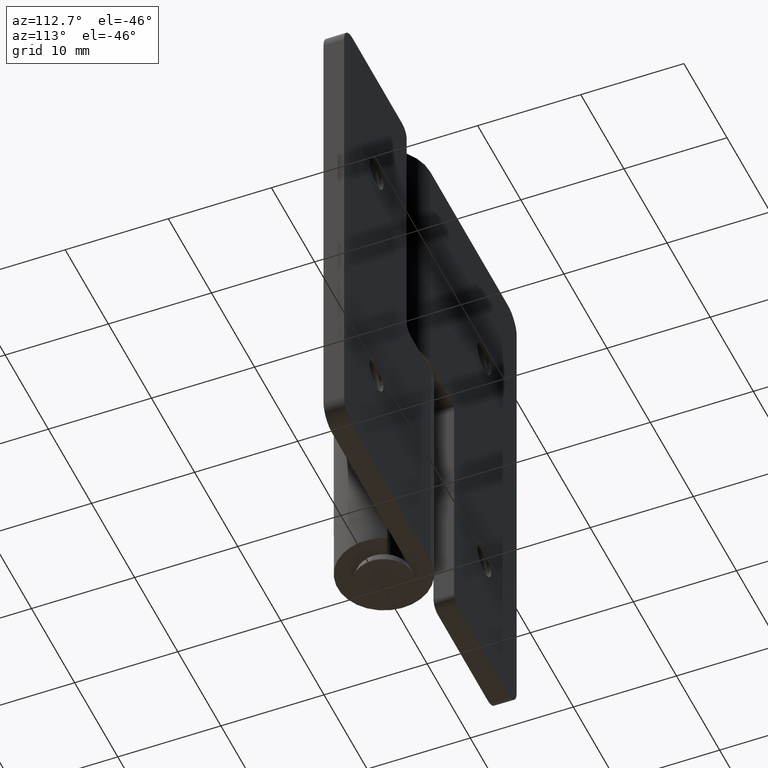
[diagram: clean part render]
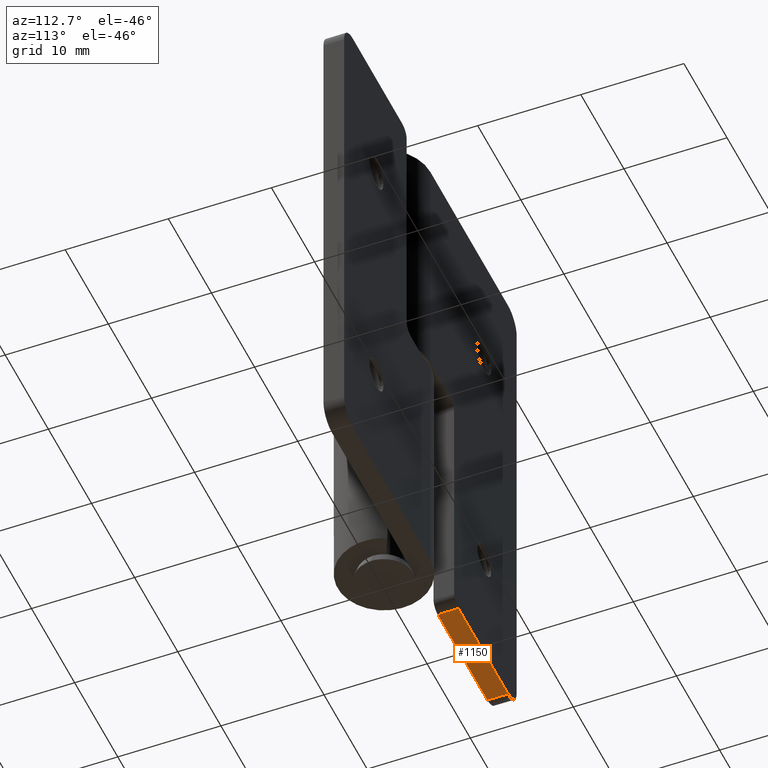
[diagram: same view with one face highlighted and labeled with its STEP entity id]
A machine part, auxiliary view. The second image highlights one B-rep face of the part: STEP entity #1150.
In plain terms, the highlighted face is a freeform B-spline surface patch.
Its self-contained STEP definition (entity closure, byte-faithful):
#722=CARTESIAN_POINT('',(-6.500000000000000,2.499999999979035,6.482144E-015));
#723=VERTEX_POINT('',#722);
#737=CARTESIAN_POINT('',(-6.500000000000000,4.500000000000000,6.482144E-015));
#738=VERTEX_POINT('',#737);
#739=CARTESIAN_POINT('',(-6.500000000000000,2.499999999979035,6.482144E-015));
#740=CARTESIAN_POINT('',(-6.500000000000000,4.500000000000000,6.482144E-015));
#741=QUASI_UNIFORM_CURVE('',1,(#739,#740),.UNSPECIFIED.,.F.,.U.);
#742=EDGE_CURVE('',#723,#738,#741,.T.);
#842=CARTESIAN_POINT('',(-17.999999999990749,2.499999999941790,1.795055E-014));
#843=VERTEX_POINT('',#842);
#866=CARTESIAN_POINT('',(-17.999999999990749,4.500000000000000,1.795055E-014));
#867=VERTEX_POINT('',#866);
#881=CARTESIAN_POINT('',(-17.999999999990749,4.500000000000000,1.795055E-014));
#882=CARTESIAN_POINT('',(-17.999999999990749,2.499999999941790,1.795055E-014));
#883=QUASI_UNIFORM_CURVE('',1,(#881,#882),.UNSPECIFIED.,.F.,.U.);
#884=EDGE_CURVE('',#867,#843,#883,.T.);
#1131=CARTESIAN_POINT('',(-5.925575022289692,2.400100003815271,0.0));
#1132=CARTESIAN_POINT('',(-18.574425286155101,2.400100003815271,0.0));
#1133=CARTESIAN_POINT('',(-5.925575022289692,4.599900049770699,0.0));
#1134=CARTESIAN_POINT('',(-18.574425286155101,4.599900049770699,0.0));
#1135=B_SPLINE_SURFACE_WITH_KNOTS('',1,1,((#1131,#1133),(#1132,#1134)),.UNSPECIFIED.,.F.,.F.,.U.,(2,2),(2,2),(0.0,12.648850263865411),(0.0,2.199800045955429),.UNSPECIFIED.);
#1136=CARTESIAN_POINT('',(-6.500000000000000,2.499999999979035,6.482144E-015));
#1137=CARTESIAN_POINT('',(-17.999999999990749,2.499999999941790,1.795055E-014));
#1138=QUASI_UNIFORM_CURVE('',1,(#1136,#1137),.UNSPECIFIED.,.F.,.U.);
#1139=EDGE_CURVE('',#723,#843,#1138,.T.);
#1140=ORIENTED_EDGE('',*,*,#1139,.T.);
#1141=ORIENTED_EDGE('',*,*,#884,.F.);
#1142=CARTESIAN_POINT('',(-17.999999999990749,4.500000000000000,1.795055E-014));
#1143=CARTESIAN_POINT('',(-6.500000000000000,4.500000000000000,6.482144E-015));
#1144=QUASI_UNIFORM_CURVE('',1,(#1142,#1143),.UNSPECIFIED.,.F.,.U.);
#1145=EDGE_CURVE('',#867,#738,#1144,.T.);
#1146=ORIENTED_EDGE('',*,*,#1145,.T.);
#1147=ORIENTED_EDGE('',*,*,#742,.F.);
#1148=EDGE_LOOP('',(#1140,#1141,#1146,#1147));
#1149=FACE_OUTER_BOUND('',#1148,.T.);
#1150=ADVANCED_FACE('',(#1149),#1135,.T.);